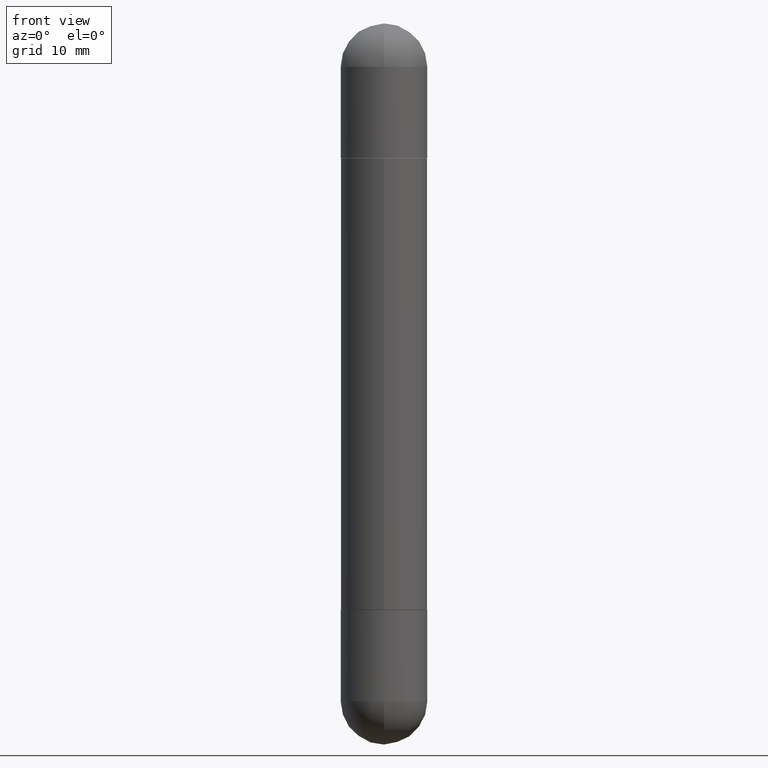
[diagram: clean part render]
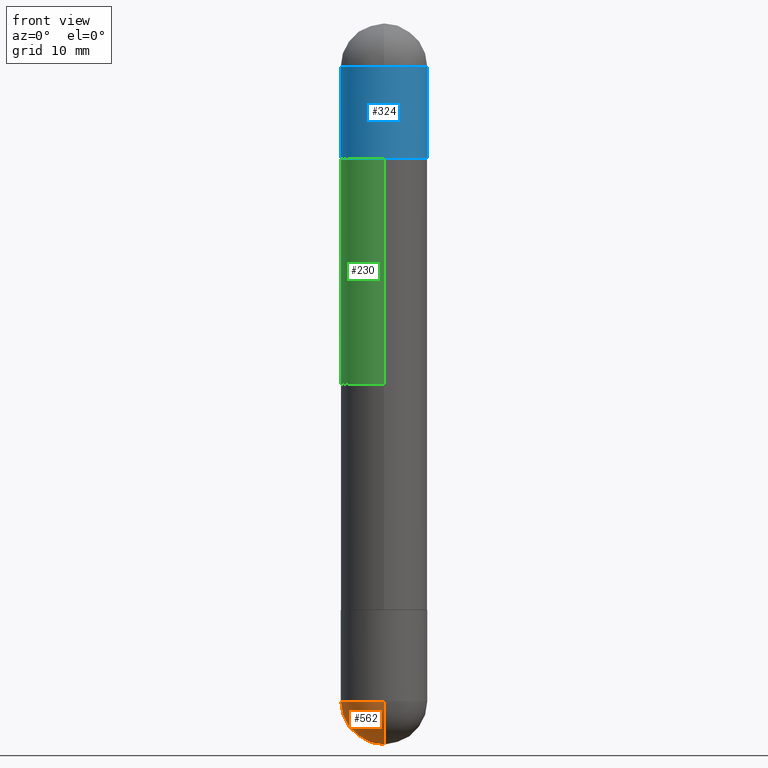
[diagram: same view with three faces highlighted in distinct colors, each labeled with its STEP entity id]
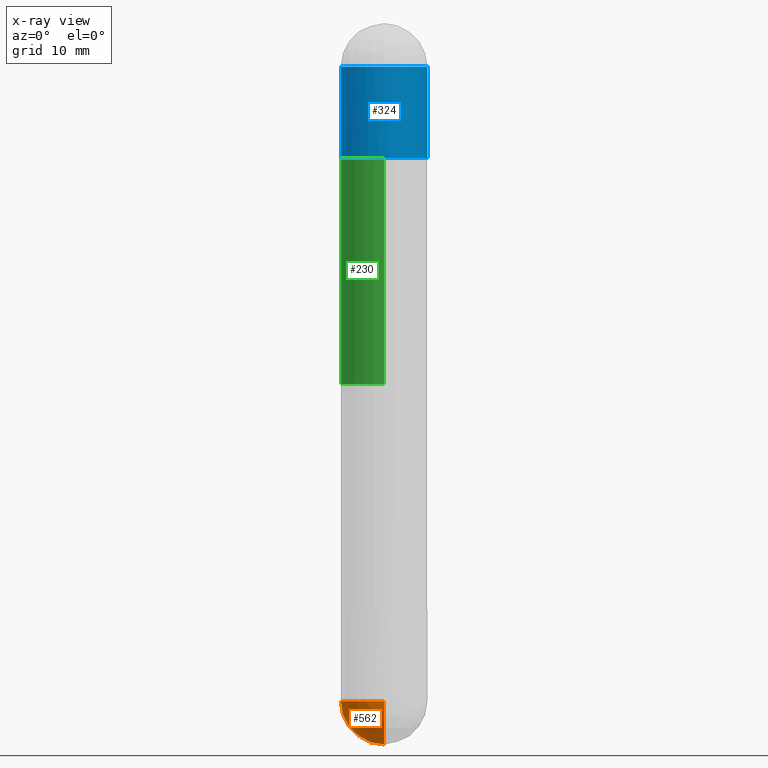
[diagram: x-ray of the same camera — body ghosted, the three highlighted faces saturated]
A machine part, front view with three faces highlighted in distinct colors.
The next image is the same camera in x-ray (body ghosted, the three faces saturated) — at least one of them is partly hidden behind the body in this view.
Their STEP definitions:

[orange] entity #562 — the highlighted spherical surface has radius 4.4996 mm.
#99 = CARTESIAN_POINT ( 'NONE',  ( 6.787765491887772680E-29, -9.691130178159974964E-15, -2.775649999999999729 ) ) ;
#104 = ORIENTED_EDGE ( 'NONE', *, *, #807, .F. ) ;
#124 = AXIS2_PLACEMENT_3D ( 'NONE', #99, #544, #353 ) ;
#126 = DIRECTION ( 'NONE',  ( 1.000000000000000000, -6.982962677686272233E-15, 0.000000000000000000 ) ) ;
#135 = VERTEX_POINT ( 'NONE', #400 ) ;
#143 = VERTEX_POINT ( 'NONE', #774 ) ;
#151 = CARTESIAN_POINT ( 'NONE',  ( 6.456645713973887554E-29, -1.016531254630002526E-14, -2.775649999999999729 ) ) ;
#212 = DIRECTION ( 'NONE',  ( 6.982962677686265922E-15, 1.000000000000000000, -3.084220145260241885E-15 ) ) ;
#226 = ORIENTED_EDGE ( 'NONE', *, *, #363, .F. ) ;
#231 = CIRCLE ( 'NONE', #694, 0.1771500000000002517 ) ;
#243 = AXIS2_PLACEMENT_3D ( 'NONE', #151, #265, #783 ) ;
#252 = CARTESIAN_POINT ( 'NONE',  ( 6.456645713973887554E-29, -1.016531254630002526E-14, -2.775649999999999729 ) ) ;
#265 = DIRECTION ( 'NONE',  ( 1.000000000000000000, -6.982962677686265922E-15, 4.883557194083112340E-29 ) ) ;
#282 = CARTESIAN_POINT ( 'NONE',  ( 1.237031838352189250E-15, 0.1771499999999902042, -2.775650000000000173 ) ) ;
#334 = CIRCLE ( 'NONE', #573, 0.1771500000000000019 ) ;
#349 = EDGE_CURVE ( 'NONE', #143, #410, #231, .T. ) ;
#353 = DIRECTION ( 'NONE',  ( 1.000000000000000000, -6.982962677686272233E-15, 0.000000000000000000 ) ) ;
#363 = EDGE_CURVE ( 'NONE', #135, #410, #334, .T. ) ;
#394 = SPHERICAL_SURFACE ( 'NONE', #751, 0.1771500000000002517 ) ;
#400 = CARTESIAN_POINT ( 'NONE',  ( -0.1771500000000000019, -7.779409424363817635E-15, -2.775649999999999729 ) ) ;
#410 = VERTEX_POINT ( 'NONE', #693 ) ;
#420 = DIRECTION ( 'NONE',  ( -7.105427357601001070E-15, -1.000000000000000000, 0.000000000000000000 ) ) ;
#480 = CIRCLE ( 'NONE', #124, 0.1771500000000000019 ) ;
#490 = DIRECTION ( 'NONE',  ( -1.000000000000000000, 7.105427357601001070E-15, -4.926315508542082329E-29 ) ) ;
#505 = DIRECTION ( 'NONE',  ( -2.445468806185136597E-29, 3.491481338843145583E-15, 1.000000000000000000 ) ) ;
#544 = DIRECTION ( 'NONE',  ( -2.445468806185136597E-29, 3.491481338843145583E-15, 1.000000000000000000 ) ) ;
#562 = ADVANCED_FACE ( 'NONE', ( #713 ), #394, .T. ) ;
#573 = AXIS2_PLACEMENT_3D ( 'NONE', #605, #505, #126 ) ;
#582 = EDGE_LOOP ( 'NONE', ( #667, #792, #226, #104 ) ) ;
#605 = CARTESIAN_POINT ( 'NONE',  ( 6.787765491887772680E-29, -9.691130178159974964E-15, -2.775649999999999729 ) ) ;
#667 = ORIENTED_EDGE ( 'NONE', *, *, #669, .F. ) ;
#669 = EDGE_CURVE ( 'NONE', #143, #730, #817, .T. ) ;
#693 = CARTESIAN_POINT ( 'NONE',  ( -1.258726456398951820E-15, -0.1771500000000100772, -2.775649999999999284 ) ) ;
#694 = AXIS2_PLACEMENT_3D ( 'NONE', #800, #490, #420 ) ;
#713 = FACE_OUTER_BOUND ( 'NONE', #582, .T. ) ;
#730 = VERTEX_POINT ( 'NONE', #282 ) ;
#751 = AXIS2_PLACEMENT_3D ( 'NONE', #252, #787, #212 ) ;
#774 = CARTESIAN_POINT ( 'NONE',  ( 6.897435148395990892E-29, -1.077298115645264157E-14, -2.952799999999999869 ) ) ;
#783 = DIRECTION ( 'NONE',  ( 6.982962677686265922E-15, 1.000000000000000000, 0.000000000000000000 ) ) ;
#787 = DIRECTION ( 'NONE',  ( -1.000000000000000000, 6.982962677686265922E-15, -4.883557194083112340E-29 ) ) ;
#792 = ORIENTED_EDGE ( 'NONE', *, *, #349, .T. ) ;
#800 = CARTESIAN_POINT ( 'NONE',  ( 6.456645713973887554E-29, -1.016531254630002526E-14, -2.775649999999999729 ) ) ;
#807 = EDGE_CURVE ( 'NONE', #730, #135, #480, .T. ) ;
#817 = CIRCLE ( 'NONE', #243, 0.1771500000000002517 ) ;

[blue] entity #324 — the highlighted cylindrical surface (partial cylindrical patch) has radius 4.4996 mm, axis along (-0, 0, -1).
#28 = CARTESIAN_POINT ( 'NONE',  ( 6.787765491887772680E-29, -9.691130178159974964E-15, -0.1771500000000000574 ) ) ;
#37 = CARTESIAN_POINT ( 'NONE',  ( -0.1771500000000000019, 1.215337220305226901E-15, -2.952799999999999869 ) ) ;
#39 = ORIENTED_EDGE ( 'NONE', *, *, #284, .T. ) ;
#41 = CIRCLE ( 'NONE', #794, 0.1771500000000000019 ) ;
#46 = CARTESIAN_POINT ( 'NONE',  ( 0.1771500000000000019, -1.237031838352122197E-15, -2.952799999999999869 ) ) ;
#57 = DIRECTION ( 'NONE',  ( -2.445468806185136877E-29, 3.491481338843145188E-15, -1.000000000000000000 ) ) ;
#74 = ORIENTED_EDGE ( 'NONE', *, *, #336, .T. ) ;
#100 = CYLINDRICAL_SURFACE ( 'NONE', #618, 0.1771500000000000019 ) ;
#116 = LINE ( 'NONE', #46, #538 ) ;
#131 = EDGE_LOOP ( 'NONE', ( #456, #74, #39, #424, #389 ) ) ;
#149 = VERTEX_POINT ( 'NONE', #658 ) ;
#168 = DIRECTION ( 'NONE',  ( -2.445468806185136597E-29, 3.491481338843145583E-15, -1.000000000000000000 ) ) ;
#174 = DIRECTION ( 'NONE',  ( 1.000000000000000000, -6.982962677686266711E-15, 0.000000000000000000 ) ) ;
#215 = VERTEX_POINT ( 'NONE', #577 ) ;
#225 = EDGE_CURVE ( 'NONE', #514, #723, #639, .T. ) ;
#233 = LINE ( 'NONE', #37, #242 ) ;
#242 = VECTOR ( 'NONE', #613, 39.37007874015748143 ) ;
#271 = DIRECTION ( 'NONE',  ( 2.445468806185136597E-29, -3.491481338843145583E-15, 1.000000000000000000 ) ) ;
#284 = EDGE_CURVE ( 'NONE', #632, #149, #764, .T. ) ;
#296 = EDGE_CURVE ( 'NONE', #215, #149, #116, .T. ) ;
#302 = DIRECTION ( 'NONE',  ( 2.445468806185136597E-29, -3.491481338843145583E-15, 1.000000000000000000 ) ) ;
#324 = ADVANCED_FACE ( 'NONE', ( #347 ), #100, .T. ) ;
#325 = CARTESIAN_POINT ( 'NONE',  ( -0.1771500000000000019, -7.822798660457608227E-15, -0.5512000000000001343 ) ) ;
#336 = EDGE_CURVE ( 'NONE', #514, #632, #233, .T. ) ;
#341 = CARTESIAN_POINT ( 'NONE',  ( -1.215337220305161228E-15, -0.1771500000000100772, -0.1771500000000006680 ) ) ;
#347 = FACE_OUTER_BOUND ( 'NONE', #131, .T. ) ;
#371 = DIRECTION ( 'NONE',  ( 1.000000000000000000, -6.982962677686272233E-15, 0.000000000000000000 ) ) ;
#375 = AXIS2_PLACEMENT_3D ( 'NONE', #28, #271, #779 ) ;
#377 = CARTESIAN_POINT ( 'NONE',  ( 6.787765491887772680E-29, -9.691130178159974964E-15, -0.1771500000000000574 ) ) ;
#388 = EDGE_CURVE ( 'NONE', #723, #215, #41, .T. ) ;
#389 = ORIENTED_EDGE ( 'NONE', *, *, #388, .F. ) ;
#424 = ORIENTED_EDGE ( 'NONE', *, *, #296, .F. ) ;
#430 = DIRECTION ( 'NONE',  ( 2.445468806185136597E-29, -3.491481338843145583E-15, 1.000000000000000000 ) ) ;
#456 = ORIENTED_EDGE ( 'NONE', *, *, #225, .F. ) ;
#514 = VERTEX_POINT ( 'NONE', #576 ) ;
#538 = VECTOR ( 'NONE', #57, 39.37007874015748143 ) ;
#550 = CARTESIAN_POINT ( 'NONE',  ( 0.000000000000000000, 0.000000000000000000, -2.952799999999999869 ) ) ;
#576 = CARTESIAN_POINT ( 'NONE',  ( -0.1771500000000000019, -7.822798660457609805E-15, -0.1771500000000000574 ) ) ;
#577 = CARTESIAN_POINT ( 'NONE',  ( 0.1771500000000000019, -1.027516771911496009E-14, -0.1771500000000000574 ) ) ;
#591 = AXIS2_PLACEMENT_3D ( 'NONE', #806, #430, #174 ) ;
#613 = DIRECTION ( 'NONE',  ( -2.445468806185136877E-29, 3.491481338843145188E-15, -1.000000000000000000 ) ) ;
#618 = AXIS2_PLACEMENT_3D ( 'NONE', #550, #168, #670 ) ;
#632 = VERTEX_POINT ( 'NONE', #325 ) ;
#639 = CIRCLE ( 'NONE', #375, 0.1771500000000000019 ) ;
#658 = CARTESIAN_POINT ( 'NONE',  ( 0.1771500000000000019, -9.622173421717819657E-15, -0.5512000000000001343 ) ) ;
#670 = DIRECTION ( 'NONE',  ( 1.000000000000000000, -6.982962677686266711E-15, 0.000000000000000000 ) ) ;
#723 = VERTEX_POINT ( 'NONE', #341 ) ;
#764 = CIRCLE ( 'NONE', #591, 0.1771500000000000019 ) ;
#779 = DIRECTION ( 'NONE',  ( 1.000000000000000000, -6.982962677686272233E-15, 0.000000000000000000 ) ) ;
#794 = AXIS2_PLACEMENT_3D ( 'NONE', #377, #302, #371 ) ;
#806 = CARTESIAN_POINT ( 'NONE',  ( 5.873037884934223228E-29, -8.385141583365697263E-15, -0.5512000000000001343 ) ) ;

[green] entity #230 — the highlighted cylindrical surface (partial cylindrical patch) has radius 4.4996 mm, axis along (-0, 0, -1).
#1 = EDGE_CURVE ( 'NONE', #235, #277, #738, .T. ) ;
#15 = DIRECTION ( 'NONE',  ( -6.982962677686265133E-15, -1.000000000000000000, -3.084220145260243069E-15 ) ) ;
#21 = DIRECTION ( 'NONE',  ( -2.444945301580279245E-29, 3.492231027233333225E-15, -1.000000000000000000 ) ) ;
#120 = AXIS2_PLACEMENT_3D ( 'NONE', #647, #21, #15 ) ;
#166 = EDGE_LOOP ( 'NONE', ( #379, #247, #772, #611 ) ) ;
#171 = DIRECTION ( 'NONE',  ( -2.444945301580279245E-29, 3.492231027233333620E-15, -1.000000000000000000 ) ) ;
#200 = VERTEX_POINT ( 'NONE', #204 ) ;
#204 = CARTESIAN_POINT ( 'NONE',  ( -1.237031838352065793E-15, -0.1771500000000087172, -0.5522000000000008013 ) ) ;
#230 = ADVANCED_FACE ( 'NONE', ( #788 ), #714, .T. ) ;
#235 = VERTEX_POINT ( 'NONE', #266 ) ;
#247 = ORIENTED_EDGE ( 'NONE', *, *, #696, .T. ) ;
#266 = CARTESIAN_POINT ( 'NONE',  ( -1.237031838352075654E-15, -0.1771500000000053310, -1.476399999999999935 ) ) ;
#270 = DIRECTION ( 'NONE',  ( 2.444945301580279245E-29, -3.492231027233333225E-15, 1.000000000000000000 ) ) ;
#277 = VERTEX_POINT ( 'NONE', #735 ) ;
#287 = CARTESIAN_POINT ( 'NONE',  ( -1.237031838352123183E-15, -0.1771500000000001962, -2.952800000000000313 ) ) ;
#317 = DIRECTION ( 'NONE',  ( -0.000000000000000000, -0.000000000000000000, -1.000000000000000000 ) ) ;
#332 = CARTESIAN_POINT ( 'NONE',  ( 5.869335690973616704E-29, -8.383449803976338802E-15, -0.5522000000000002462 ) ) ;
#379 = ORIENTED_EDGE ( 'NONE', *, *, #528, .F. ) ;
#448 = CIRCLE ( 'NONE', #629, 0.1771500000000003350 ) ;
#473 = LINE ( 'NONE', #287, #595 ) ;
#489 = LINE ( 'NONE', #673, #657 ) ;
#522 = DIRECTION ( 'NONE',  ( -6.982962677686265133E-15, -1.000000000000000000, -3.469747663417770691E-15 ) ) ;
#528 = EDGE_CURVE ( 'NONE', #715, #200, #448, .T. ) ;
#549 = CARTESIAN_POINT ( 'NONE',  ( 1.215337220305287643E-15, 0.1771499999999919250, -0.5521999999999995801 ) ) ;
#595 = VECTOR ( 'NONE', #726, 39.37007874015748143 ) ;
#611 = ORIENTED_EDGE ( 'NONE', *, *, #803, .F. ) ;
#629 = AXIS2_PLACEMENT_3D ( 'NONE', #332, #270, #522 ) ;
#647 = CARTESIAN_POINT ( 'NONE',  ( 0.000000000000000000, 0.000000000000000000, -2.952799999999999869 ) ) ;
#657 = VECTOR ( 'NONE', #171, 39.37007874015748143 ) ;
#673 = CARTESIAN_POINT ( 'NONE',  ( 1.215337220305227887E-15, 0.1771500000000001962, -2.952799999999998981 ) ) ;
#696 = EDGE_CURVE ( 'NONE', #715, #277, #489, .T. ) ;
#714 = CYLINDRICAL_SURFACE ( 'NONE', #120, 0.1771500000000001962 ) ;
#715 = VERTEX_POINT ( 'NONE', #549 ) ;
#724 = AXIS2_PLACEMENT_3D ( 'NONE', #769, #317, #763 ) ;
#726 = DIRECTION ( 'NONE',  ( -2.444945301580279245E-29, 3.492231027233333620E-15, -1.000000000000000000 ) ) ;
#735 = CARTESIAN_POINT ( 'NONE',  ( 1.215337220305286460E-15, 0.1771499999999950337, -1.476399999999999935 ) ) ;
#738 = CIRCLE ( 'NONE', #724, 0.1771500000000001962 ) ;
#763 = DIRECTION ( 'NONE',  ( -1.000000000000000000, 0.000000000000000000, 0.000000000000000000 ) ) ;
#769 = CARTESIAN_POINT ( 'NONE',  ( 3.609717243253123890E-29, -5.155929888607292268E-15, -1.476399999999999935 ) ) ;
#772 = ORIENTED_EDGE ( 'NONE', *, *, #1, .F. ) ;
#788 = FACE_OUTER_BOUND ( 'NONE', #166, .T. ) ;
#803 = EDGE_CURVE ( 'NONE', #200, #235, #473, .T. ) ;